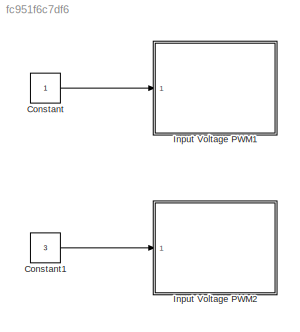
MODEL slx_fc951f6c7df6
KIND model
CONFIG AbsTol = auto
CONFIG FixedStep = auto
CONFIG MaxStep = auto
CONFIG MinStep = auto
CONFIG RelTol = 1e-3
CONFIG SampleTimeConstraint = Unconstrained
CONFIG Solver = FixedStepDiscrete
CONFIG SolverMode = Auto
CONFIG SolverName = FixedStepDiscrete
CONFIG StartTime = 0.0
CONFIG StopTime = inf
BLOCK [Constant] Constant
  SampleTime = 0.001
BLOCK [Constant] Constant1
  SampleTime = 0.001
  Value = 3
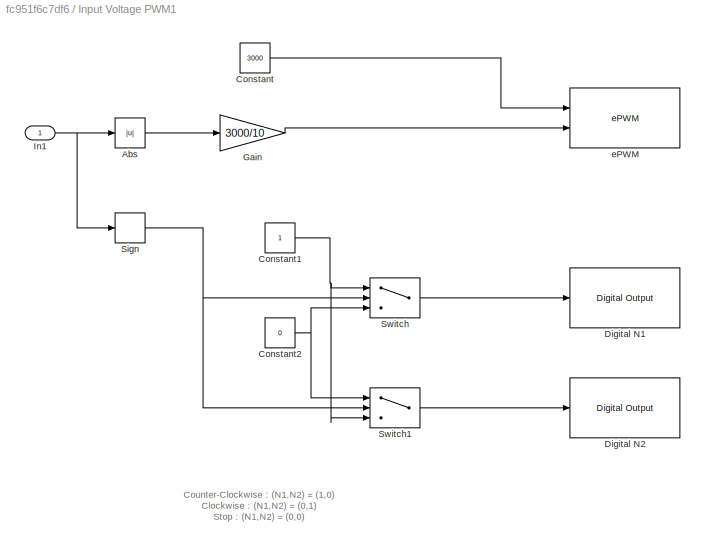
BLOCK [SubSystem] Input Voltage PWM1
  Ports = [1]
  RequestExecContextInheritance = off
  Variant = off
BLOCK [Abs] Input Voltage PWM1/Abs
  SaturateOnIntegerOverflow = off
BLOCK [Constant] Input Voltage PWM1/Constant
  Value = 3000
BLOCK [Constant] Input Voltage PWM1/Constant1
BLOCK [Constant] Input Voltage PWM1/Constant2
  Value = 0
BLOCK [Reference] Input Voltage PWM1/Digital N1  REF=c2833xlib/Digital Output
  Ports = [1]
  SourceBlock = c2833xlib/Digital Output
  SourceType = C2833x GPIO Digital Output
  UserDataPersistent = on
BLOCK [Reference] Input Voltage PWM1/Digital N2  REF=c2833xlib/Digital Output
  Ports = [1]
  SourceBlock = c2833xlib/Digital Output
  SourceType = C2833x GPIO Digital Output
  UserDataPersistent = on
BLOCK [Gain] Input Voltage PWM1/Gain
  Gain = 3000/10
  OutDataTypeStr = Inherit: Inherit via internal rule
  ParamDataTypeStr = Inherit: Inherit via internal rule
  SaturateOnIntegerOverflow = off
BLOCK [Inport] Input Voltage PWM1/In1
  IconDisplay = Port number
BLOCK [Signum] Input Voltage PWM1/Sign
BLOCK [Switch] Input Voltage PWM1/Switch
  Criteria = u2 > Threshold
  InputSameDT = off
  SaturateOnIntegerOverflow = off
BLOCK [Switch] Input Voltage PWM1/Switch1
  Criteria = u2 > Threshold
  InputSameDT = off
  SaturateOnIntegerOverflow = off
BLOCK [Reference] Input Voltage PWM1/ePWM  REF=c280xlib/ePWM
  Ports = [2]
  SourceBlock = c280xlib/ePWM
  SourceType = C280x/C2833x ePWM
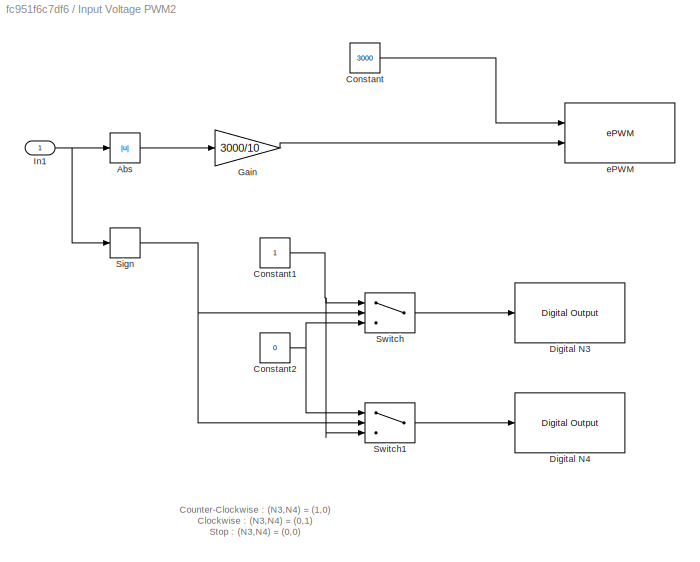
BLOCK [SubSystem] Input Voltage PWM2
  Ports = [1]
  RequestExecContextInheritance = off
  Variant = off
BLOCK [Abs] Input Voltage PWM2/Abs
  SaturateOnIntegerOverflow = off
BLOCK [Constant] Input Voltage PWM2/Constant
  Value = 3000
BLOCK [Constant] Input Voltage PWM2/Constant1
BLOCK [Constant] Input Voltage PWM2/Constant2
  Value = 0
BLOCK [Reference] Input Voltage PWM2/Digital N3  REF=c2833xlib/Digital Output
  Ports = [1]
  SourceBlock = c2833xlib/Digital Output
  SourceType = C2833x GPIO Digital Output
  UserDataPersistent = on
BLOCK [Reference] Input Voltage PWM2/Digital N4  REF=c2833xlib/Digital Output
  Ports = [1]
  SourceBlock = c2833xlib/Digital Output
  SourceType = C2833x GPIO Digital Output
  UserDataPersistent = on
BLOCK [Gain] Input Voltage PWM2/Gain
  Gain = 3000/10
  OutDataTypeStr = Inherit: Inherit via internal rule
  ParamDataTypeStr = Inherit: Inherit via internal rule
  SaturateOnIntegerOverflow = off
BLOCK [Inport] Input Voltage PWM2/In1
  IconDisplay = Port number
BLOCK [Signum] Input Voltage PWM2/Sign
BLOCK [Switch] Input Voltage PWM2/Switch
  Criteria = u2 > Threshold
  InputSameDT = off
  SaturateOnIntegerOverflow = off
BLOCK [Switch] Input Voltage PWM2/Switch1
  Criteria = u2 > Threshold
  InputSameDT = off
  SaturateOnIntegerOverflow = off
BLOCK [Reference] Input Voltage PWM2/ePWM  REF=c280xlib/ePWM
  Ports = [2]
  SourceBlock = c280xlib/ePWM
  SourceType = C280x/C2833x ePWM
ANNOTATION Input Voltage PWM1: Counter-Clockwise : (N1,N2) = (1,0) Clockwise : (N1,N2) = (0,1) Stop : (N1,N2) = (0,0)
ANNOTATION Input Voltage PWM2: Counter-Clockwise : (N3,N4) = (1,0) Clockwise : (N3,N4) = (0,1) Stop : (N3,N4) = (0,0)
LINE Constant1:1 -> Input Voltage PWM2:1
LINE Constant:1 -> Input Voltage PWM1:1
LINE Input Voltage PWM1/Abs:1 -> Input Voltage PWM1/Gain:1
NET Input Voltage PWM1/Constant1:1 -> Input Voltage PWM1/Switch1:3, Input Voltage PWM1/Switch:1
NET Input Voltage PWM1/Constant2:1 -> Input Voltage PWM1/Switch1:1, Input Voltage PWM1/Switch:3
LINE Input Voltage PWM1/Constant:1 -> Input Voltage PWM1/ePWM:1
LINE Input Voltage PWM1/Gain:1 -> Input Voltage PWM1/ePWM:2
NET Input Voltage PWM1/In1:1 -> Input Voltage PWM1/Abs:1, Input Voltage PWM1/Sign:1
NET Input Voltage PWM1/Sign:1 -> Input Voltage PWM1/Switch1:2, Input Voltage PWM1/Switch:2
LINE Input Voltage PWM1/Switch1:1 -> Input Voltage PWM1/Digital N2:1
LINE Input Voltage PWM1/Switch:1 -> Input Voltage PWM1/Digital N1:1
LINE Input Voltage PWM2/Abs:1 -> Input Voltage PWM2/Gain:1
NET Input Voltage PWM2/Constant1:1 -> Input Voltage PWM2/Switch1:3, Input Voltage PWM2/Switch:1
NET Input Voltage PWM2/Constant2:1 -> Input Voltage PWM2/Switch1:1, Input Voltage PWM2/Switch:3
LINE Input Voltage PWM2/Constant:1 -> Input Voltage PWM2/ePWM:1
LINE Input Voltage PWM2/Gain:1 -> Input Voltage PWM2/ePWM:2
NET Input Voltage PWM2/In1:1 -> Input Voltage PWM2/Abs:1, Input Voltage PWM2/Sign:1
NET Input Voltage PWM2/Sign:1 -> Input Voltage PWM2/Switch1:2, Input Voltage PWM2/Switch:2
LINE Input Voltage PWM2/Switch1:1 -> Input Voltage PWM2/Digital N4:1
LINE Input Voltage PWM2/Switch:1 -> Input Voltage PWM2/Digital N3:1
note: NET lines group one-source signal fan-out (src -> all destinations, sorted); 1:1 wires keep LINE
